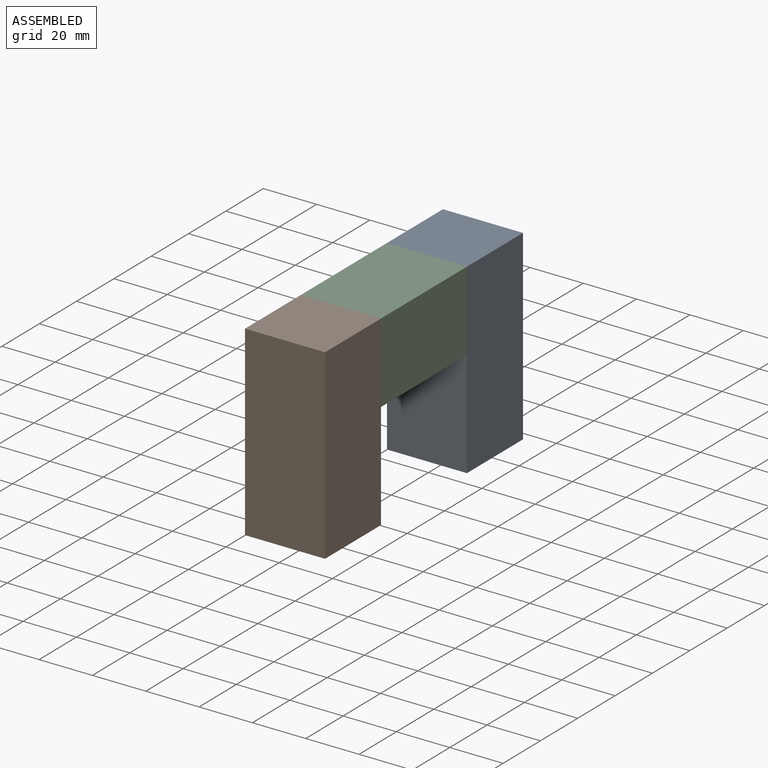
[diagram: assembled view]
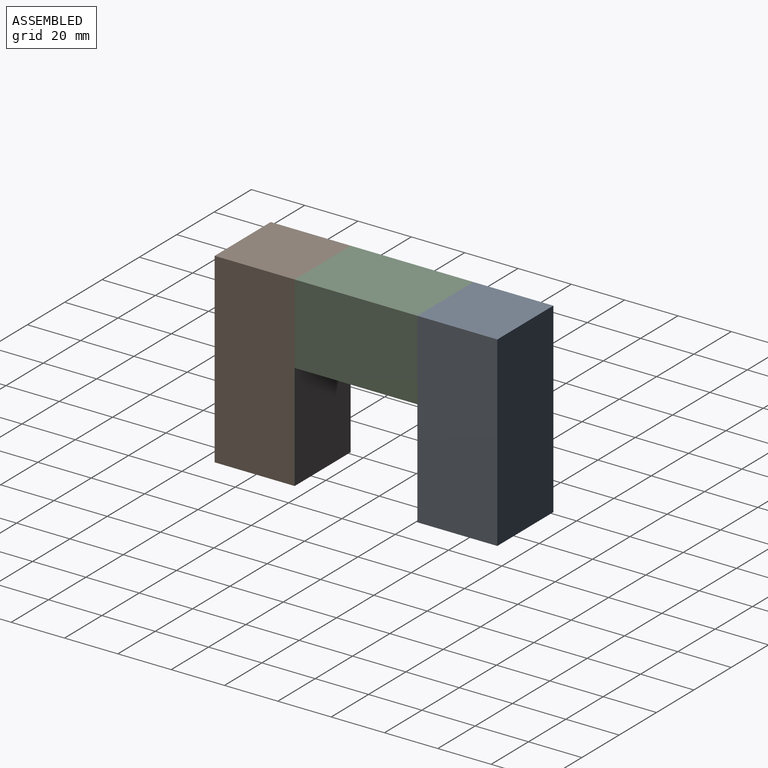
[diagram: assembled view, second angle]
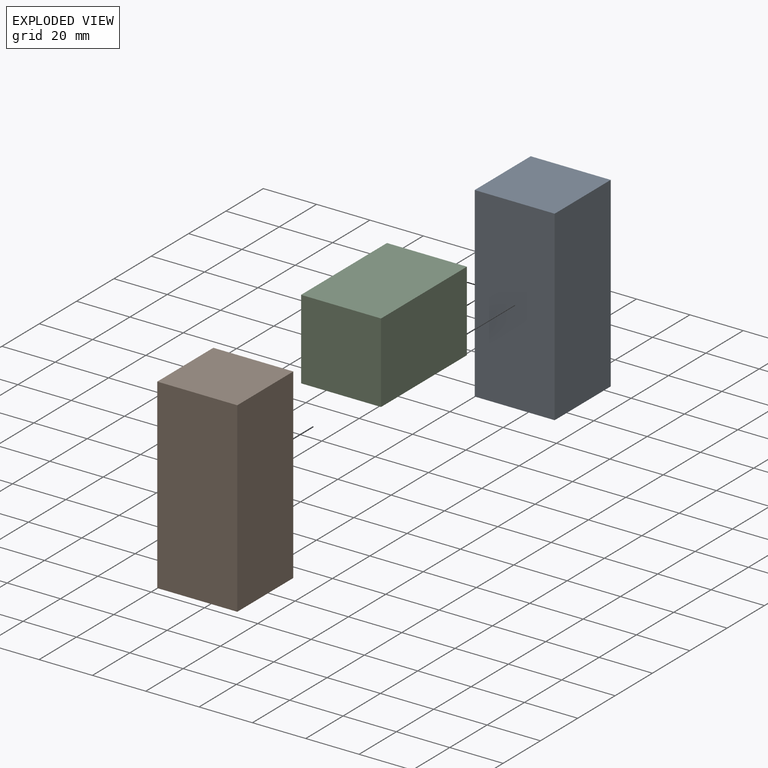
[diagram: exploded view]
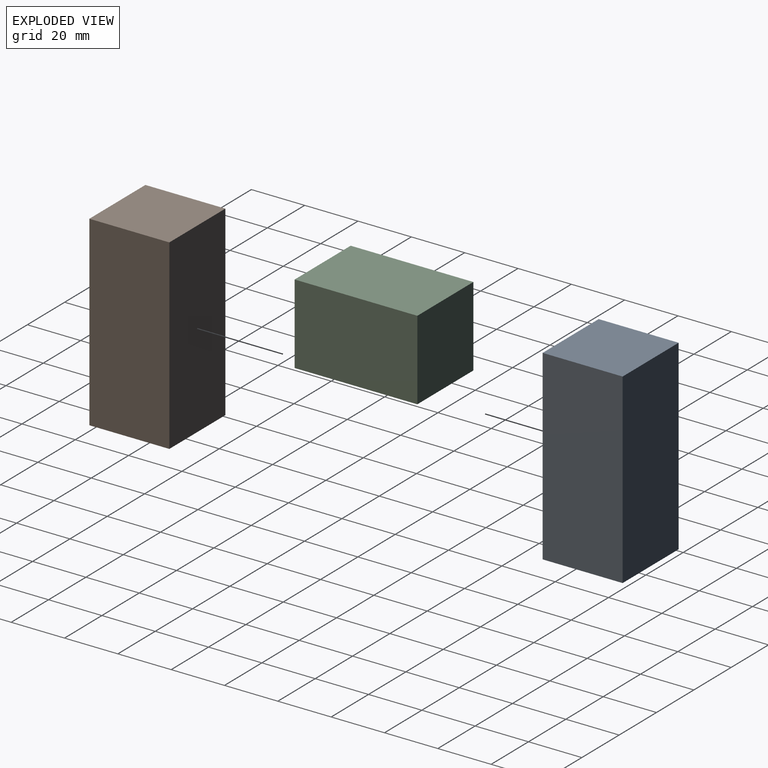
[diagram: exploded view, second angle]
ASSEMBLY  parts=3 mates=2
PART A: 6 faces, bbox 30x30x70 mm
  f0: plane 70x30mm, normal (0,-1,0), area 2100mm2, adj f1,f3,f4,f5
  f1: plane 70x30mm, normal (1,0,0), area 2100mm2, adj f0,f2,f4,f5
  f2: plane 70x30mm, normal (0,1,0), area 2100mm2, adj f1,f3,f4,f5
  f3: plane 70x30mm, normal (-1,0,0), area 2100mm2, adj f0,f2,f4,f5
  f4: plane 30x30mm, normal (0,0,1), area 900mm2, adj f0,f1,f2,f3
  f5: plane 30x30mm, normal (0,0,-1), area 900mm2, adj f0,f1,f2,f3
PART B: same geometry as A
PART C: 6 faces, bbox 30x30x46 mm
  f0: plane 46x30mm, normal (0,-1,0), area 1380mm2, adj f1,f3,f4,f5
  f1: plane 46x30mm, normal (1,0,0), area 1380mm2, adj f0,f2,f4,f5
  f2: plane 46x30mm, normal (0,1,0), area 1380mm2, adj f1,f3,f4,f5
  f3: plane 46x30mm, normal (-1,0,0), area 1380mm2, adj f0,f2,f4,f5
  f4: plane 30x30mm, normal (0,0,1), area 900mm2, adj f0,f1,f2,f3
  f5: plane 30x30mm, normal (0,0,-1), area 900mm2, adj f0,f1,f2,f3
PLACE A t=(-47.64,-17.05,16.17)mm
PLACE B rot(axis=(0,0,1),180deg) t=(-77.64,-63.05,16.17)mm
PLACE C rot(axis=(-1,0,0),90deg) t=(-47.64,-63.05,86.17)mm
MATE parallel B.f0 <-> C.f5  axis (0,1,0) through (-62.64,-63.05,86.17)mm
MATE parallel C.f4 <-> A.f0  axis (0,1,0) through (-62.64,-17.05,86.17)mm
